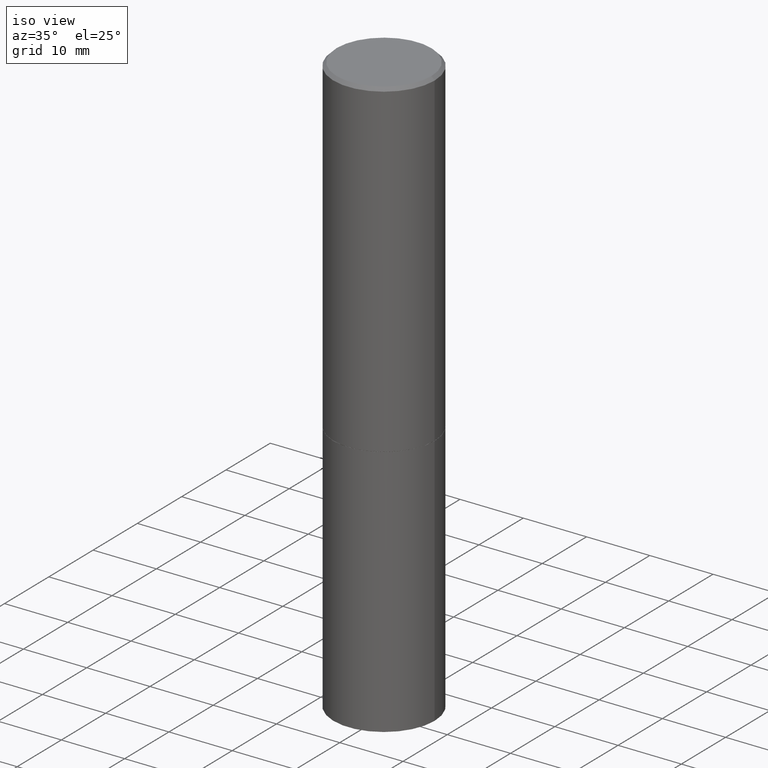
[diagram: clean part render]
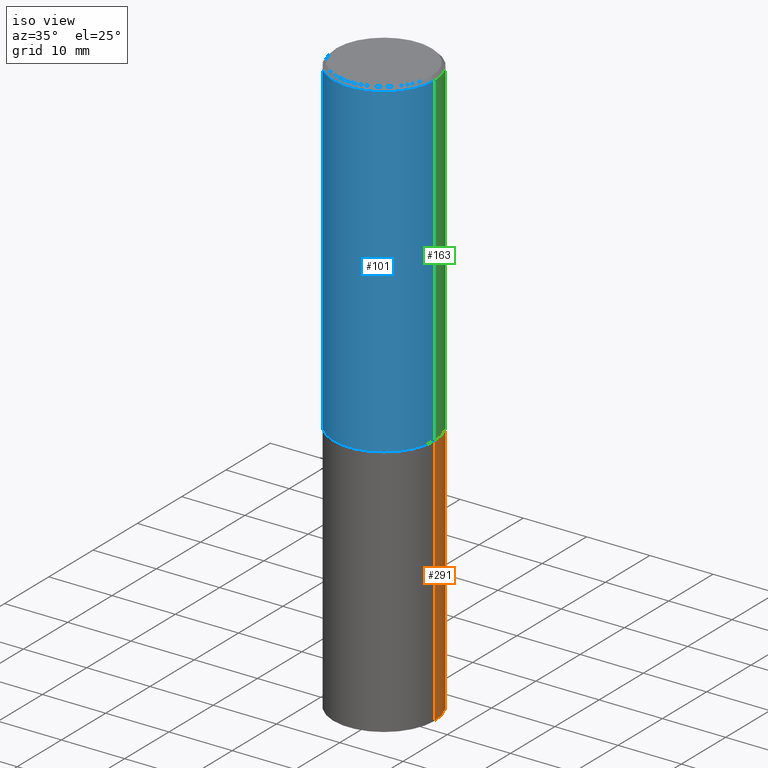
[diagram: same view with three faces highlighted in distinct colors, each labeled with its STEP entity id]
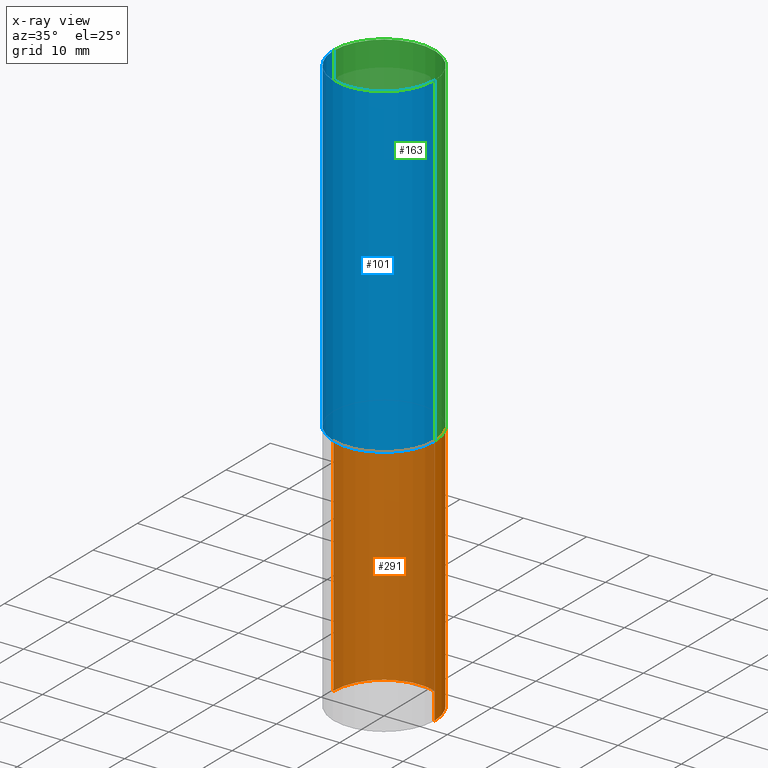
[diagram: x-ray of the same camera — body ghosted, the three highlighted faces saturated]
A machine part, iso view with three faces highlighted in distinct colors.
The next image is the same camera in x-ray (body ghosted, the three faces saturated) — at least one of them is partly hidden behind the body in this view.
Their STEP definitions:

[orange] entity #291 — the highlighted cylindrical surface (partial cylindrical patch) has radius 7.9997 mm, axis along (-0, 0, 1).
#1 = DIRECTION ( 'NONE',  ( -2.445468806185136597E-29, 3.491481338843145583E-15, 1.000000000000000000 ) ) ;
#20 = EDGE_CURVE ( 'NONE', #244, #129, #348, .T. ) ;
#59 = AXIS2_PLACEMENT_3D ( 'NONE', #173, #237, #175 ) ;
#85 = EDGE_CURVE ( 'NONE', #216, #129, #366, .T. ) ;
#88 = CARTESIAN_POINT ( 'NONE',  ( -0.3149500000000000077, -7.659098656808343322E-15, -2.047199999999999687 ) ) ;
#97 = VECTOR ( 'NONE', #304, 39.37007874015748143 ) ;
#103 = ORIENTED_EDGE ( 'NONE', *, *, #352, .T. ) ;
#107 = CARTESIAN_POINT ( 'NONE',  ( -0.3149500000000000077, 2.237854346276435590E-15, -1.549218606675782676E-29 ) ) ;
#112 = CARTESIAN_POINT ( 'NONE',  ( -0.3149500000000000077, -7.659098656808343322E-15, -3.621999999999999886 ) ) ;
#122 = VERTEX_POINT ( 'NONE', #164 ) ;
#129 = VERTEX_POINT ( 'NONE', #88 ) ;
#138 = CARTESIAN_POINT ( 'NONE',  ( 5.006363740022211120E-29, -7.147760596879686624E-15, -2.047199999999999687 ) ) ;
#146 = LINE ( 'NONE', #225, #289 ) ;
#164 = CARTESIAN_POINT ( 'NONE',  ( 0.3149500000000000077, -1.484542950462716186E-14, -3.621999999999999886 ) ) ;
#167 = DIRECTION ( 'NONE',  ( -2.445468806185136877E-29, 3.491481338843145188E-15, 1.000000000000000000 ) ) ;
#170 = CARTESIAN_POINT ( 'NONE',  ( 0.000000000000000000, 0.000000000000000000, 0.000000000000000000 ) ) ;
#173 = CARTESIAN_POINT ( 'NONE',  ( 8.857488016002564476E-29, -1.264614540928987199E-14, -3.621999999999999886 ) ) ;
#175 = DIRECTION ( 'NONE',  ( 1.000000000000000000, -6.982962677686263555E-15, 0.000000000000000000 ) ) ;
#201 = FACE_OUTER_BOUND ( 'NONE', #321, .T. ) ;
#209 = ORIENTED_EDGE ( 'NONE', *, *, #85, .T. ) ;
#213 = ORIENTED_EDGE ( 'NONE', *, *, #220, .F. ) ;
#214 = ORIENTED_EDGE ( 'NONE', *, *, #20, .F. ) ;
#216 = VERTEX_POINT ( 'NONE', #112 ) ;
#217 = CIRCLE ( 'NONE', #59, 0.3149500000000000077 ) ;
#219 = DIRECTION ( 'NONE',  ( 1.000000000000000000, -6.982962677686269866E-15, 0.000000000000000000 ) ) ;
#220 = EDGE_CURVE ( 'NONE', #122, #244, #146, .T. ) ;
#225 = CARTESIAN_POINT ( 'NONE',  ( 0.3149500000000000077, -2.199284095337289871E-15, 1.535751875536930130E-29 ) ) ;
#228 = AXIS2_PLACEMENT_3D ( 'NONE', #138, #1, #219 ) ;
#237 = DIRECTION ( 'NONE',  ( -2.445468806185136597E-29, 3.491481338843145583E-15, 1.000000000000000000 ) ) ;
#244 = VERTEX_POINT ( 'NONE', #341 ) ;
#261 = DIRECTION ( 'NONE',  ( 1.000000000000000000, -6.982962677686266711E-15, 4.876176775795936353E-29 ) ) ;
#280 = AXIS2_PLACEMENT_3D ( 'NONE', #170, #286, #261 ) ;
#286 = DIRECTION ( 'NONE',  ( -2.445468806185136597E-29, 3.491481338843145583E-15, 1.000000000000000000 ) ) ;
#289 = VECTOR ( 'NONE', #167, 39.37007874015748143 ) ;
#291 = ADVANCED_FACE ( 'NONE', ( #201 ), #314, .T. ) ;
#304 = DIRECTION ( 'NONE',  ( -2.445468806185136877E-29, 3.491481338843145188E-15, 1.000000000000000000 ) ) ;
#314 = CYLINDRICAL_SURFACE ( 'NONE', #280, 0.3149500000000000077 ) ;
#321 = EDGE_LOOP ( 'NONE', ( #103, #209, #214, #213 ) ) ;
#341 = CARTESIAN_POINT ( 'NONE',  ( 0.3149500000000000077, -9.347044692216978073E-15, -2.047199999999999687 ) ) ;
#348 = CIRCLE ( 'NONE', #228, 0.3149500000000000077 ) ;
#352 = EDGE_CURVE ( 'NONE', #122, #216, #217, .T. ) ;
#366 = LINE ( 'NONE', #107, #97 ) ;

[blue] entity #101 — the highlighted cylindrical surface (partial cylindrical patch) has radius 7.9997 mm, axis along (-0, 0, 1).
#2 = CARTESIAN_POINT ( 'NONE',  ( 0.000000000000000000, 0.000000000000000000, 0.000000000000000000 ) ) ;
#17 = DIRECTION ( 'NONE',  ( 1.000000000000000000, -6.982962677686265922E-15, 4.876176775795935232E-29 ) ) ;
#29 = DIRECTION ( 'NONE',  ( -2.445468806185136877E-29, 3.491481338843145188E-15, 1.000000000000000000 ) ) ;
#47 = CARTESIAN_POINT ( 'NONE',  ( -0.3149500000000000077, -1.369195024882416092E-15, -2.046199999999999797 ) ) ;
#52 = FACE_OUTER_BOUND ( 'NONE', #68, .T. ) ;
#57 = CARTESIAN_POINT ( 'NONE',  ( -0.3149499999999998967, 2.237854346276434801E-15, -1.549218606675782116E-29 ) ) ;
#67 = DIRECTION ( 'NONE',  ( 1.000000000000000000, -6.982962677686266711E-15, 0.000000000000000000 ) ) ;
#68 = EDGE_LOOP ( 'NONE', ( #182, #317, #336, #328 ) ) ;
#74 = VERTEX_POINT ( 'NONE', #47 ) ;
#101 = ADVANCED_FACE ( 'NONE', ( #52 ), #276, .T. ) ;
#104 = AXIS2_PLACEMENT_3D ( 'NONE', #2, #155, #17 ) ;
#111 = EDGE_CURVE ( 'NONE', #74, #331, #362, .T. ) ;
#121 = LINE ( 'NONE', #353, #259 ) ;
#136 = EDGE_CURVE ( 'NONE', #74, #318, #285, .T. ) ;
#150 = AXIS2_PLACEMENT_3D ( 'NONE', #235, #323, #67 ) ;
#155 = DIRECTION ( 'NONE',  ( -2.445468806185136597E-29, 3.491481338843145583E-15, 1.000000000000000000 ) ) ;
#169 = AXIS2_PLACEMENT_3D ( 'NONE', #258, #224, #340 ) ;
#182 = ORIENTED_EDGE ( 'NONE', *, *, #111, .F. ) ;
#210 = CARTESIAN_POINT ( 'NONE',  ( 0.3149499999999997302, -2.230543471175005478E-15, -0.02000000000000006981 ) ) ;
#224 = DIRECTION ( 'NONE',  ( -2.445468806185136597E-29, 3.491481338843145583E-15, 1.000000000000000000 ) ) ;
#235 = CARTESIAN_POINT ( 'NONE',  ( 4.890937612370289799E-31, -6.982962677686315028E-17, -0.02000000000000006981 ) ) ;
#240 = VECTOR ( 'NONE', #29, 39.37007874015748143 ) ;
#257 = CIRCLE ( 'NONE', #150, 0.3149499999999997302 ) ;
#258 = CARTESIAN_POINT ( 'NONE',  ( 5.003918271216025517E-29, -7.144269115540843617E-15, -2.046199999999999797 ) ) ;
#259 = VECTOR ( 'NONE', #288, 39.37007874015748143 ) ;
#263 = CARTESIAN_POINT ( 'NONE',  ( 0.3149500000000000077, -9.343553210878133488E-15, -2.046199999999999797 ) ) ;
#276 = CYLINDRICAL_SURFACE ( 'NONE', #104, 0.3149499999999998967 ) ;
#285 = CIRCLE ( 'NONE', #169, 0.3149500000000000077 ) ;
#288 = DIRECTION ( 'NONE',  ( -2.445468806185136877E-29, 3.491481338843145188E-15, 1.000000000000000000 ) ) ;
#316 = EDGE_CURVE ( 'NONE', #331, #330, #257, .T. ) ;
#317 = ORIENTED_EDGE ( 'NONE', *, *, #136, .T. ) ;
#318 = VERTEX_POINT ( 'NONE', #263 ) ;
#320 = CARTESIAN_POINT ( 'NONE',  ( -0.3149499999999997302, 2.129454468560424601E-15, -0.02000000000000006981 ) ) ;
#323 = DIRECTION ( 'NONE',  ( -2.445468806185136597E-29, 3.491481338843145583E-15, 1.000000000000000000 ) ) ;
#326 = EDGE_CURVE ( 'NONE', #318, #330, #121, .T. ) ;
#328 = ORIENTED_EDGE ( 'NONE', *, *, #316, .F. ) ;
#330 = VERTEX_POINT ( 'NONE', #210 ) ;
#331 = VERTEX_POINT ( 'NONE', #320 ) ;
#336 = ORIENTED_EDGE ( 'NONE', *, *, #326, .T. ) ;
#340 = DIRECTION ( 'NONE',  ( 1.000000000000000000, -6.982962677686266711E-15, 0.000000000000000000 ) ) ;
#353 = CARTESIAN_POINT ( 'NONE',  ( 0.3149499999999998967, -2.199284095337288688E-15, 1.535751875536929289E-29 ) ) ;
#362 = LINE ( 'NONE', #57, #240 ) ;

[green] entity #163 — the highlighted cylindrical surface (partial cylindrical patch) has radius 7.9997 mm, axis along (-0, 0, 1).
#6 = CIRCLE ( 'NONE', #120, 0.3149499999999997302 ) ;
#14 = AXIS2_PLACEMENT_3D ( 'NONE', #284, #310, #199 ) ;
#28 = DIRECTION ( 'NONE',  ( 1.000000000000000000, -6.982962677686266711E-15, 0.000000000000000000 ) ) ;
#29 = DIRECTION ( 'NONE',  ( -2.445468806185136877E-29, 3.491481338843145188E-15, 1.000000000000000000 ) ) ;
#33 = CYLINDRICAL_SURFACE ( 'NONE', #14, 0.3149499999999998967 ) ;
#47 = CARTESIAN_POINT ( 'NONE',  ( -0.3149500000000000077, -1.369195024882416092E-15, -2.046199999999999797 ) ) ;
#57 = CARTESIAN_POINT ( 'NONE',  ( -0.3149499999999998967, 2.237854346276434801E-15, -1.549218606675782116E-29 ) ) ;
#64 = AXIS2_PLACEMENT_3D ( 'NONE', #324, #93, #171 ) ;
#72 = ORIENTED_EDGE ( 'NONE', *, *, #326, .F. ) ;
#73 = CIRCLE ( 'NONE', #64, 0.3149500000000000077 ) ;
#74 = VERTEX_POINT ( 'NONE', #47 ) ;
#93 = DIRECTION ( 'NONE',  ( -2.445468806185136597E-29, 3.491481338843145583E-15, 1.000000000000000000 ) ) ;
#108 = ORIENTED_EDGE ( 'NONE', *, *, #364, .T. ) ;
#111 = EDGE_CURVE ( 'NONE', #74, #331, #362, .T. ) ;
#120 = AXIS2_PLACEMENT_3D ( 'NONE', #223, #338, #28 ) ;
#121 = LINE ( 'NONE', #353, #259 ) ;
#163 = ADVANCED_FACE ( 'NONE', ( #346 ), #33, .T. ) ;
#171 = DIRECTION ( 'NONE',  ( 1.000000000000000000, -6.982962677686266711E-15, 0.000000000000000000 ) ) ;
#199 = DIRECTION ( 'NONE',  ( 1.000000000000000000, -6.982962677686265922E-15, 4.876176775795935232E-29 ) ) ;
#210 = CARTESIAN_POINT ( 'NONE',  ( 0.3149499999999997302, -2.230543471175005478E-15, -0.02000000000000006981 ) ) ;
#221 = ORIENTED_EDGE ( 'NONE', *, *, #297, .F. ) ;
#223 = CARTESIAN_POINT ( 'NONE',  ( 4.890937612370289799E-31, -6.982962677686315028E-17, -0.02000000000000006981 ) ) ;
#234 = EDGE_LOOP ( 'NONE', ( #108, #292, #221, #72 ) ) ;
#240 = VECTOR ( 'NONE', #29, 39.37007874015748143 ) ;
#259 = VECTOR ( 'NONE', #288, 39.37007874015748143 ) ;
#263 = CARTESIAN_POINT ( 'NONE',  ( 0.3149500000000000077, -9.343553210878133488E-15, -2.046199999999999797 ) ) ;
#284 = CARTESIAN_POINT ( 'NONE',  ( 0.000000000000000000, 0.000000000000000000, 0.000000000000000000 ) ) ;
#288 = DIRECTION ( 'NONE',  ( -2.445468806185136877E-29, 3.491481338843145188E-15, 1.000000000000000000 ) ) ;
#292 = ORIENTED_EDGE ( 'NONE', *, *, #111, .T. ) ;
#297 = EDGE_CURVE ( 'NONE', #330, #331, #6, .T. ) ;
#310 = DIRECTION ( 'NONE',  ( -2.445468806185136597E-29, 3.491481338843145583E-15, 1.000000000000000000 ) ) ;
#318 = VERTEX_POINT ( 'NONE', #263 ) ;
#320 = CARTESIAN_POINT ( 'NONE',  ( -0.3149499999999997302, 2.129454468560424601E-15, -0.02000000000000006981 ) ) ;
#324 = CARTESIAN_POINT ( 'NONE',  ( 5.003918271216025517E-29, -7.144269115540843617E-15, -2.046199999999999797 ) ) ;
#326 = EDGE_CURVE ( 'NONE', #318, #330, #121, .T. ) ;
#330 = VERTEX_POINT ( 'NONE', #210 ) ;
#331 = VERTEX_POINT ( 'NONE', #320 ) ;
#338 = DIRECTION ( 'NONE',  ( -2.445468806185136597E-29, 3.491481338843145583E-15, 1.000000000000000000 ) ) ;
#346 = FACE_OUTER_BOUND ( 'NONE', #234, .T. ) ;
#353 = CARTESIAN_POINT ( 'NONE',  ( 0.3149499999999998967, -2.199284095337288688E-15, 1.535751875536929289E-29 ) ) ;
#362 = LINE ( 'NONE', #57, #240 ) ;
#364 = EDGE_CURVE ( 'NONE', #318, #74, #73, .T. ) ;